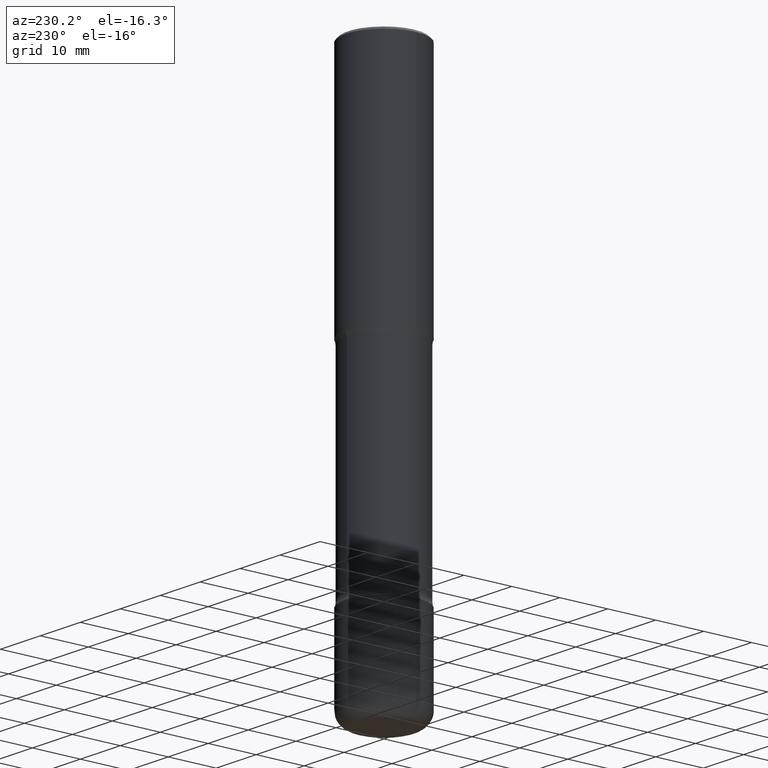
[diagram: clean part render]
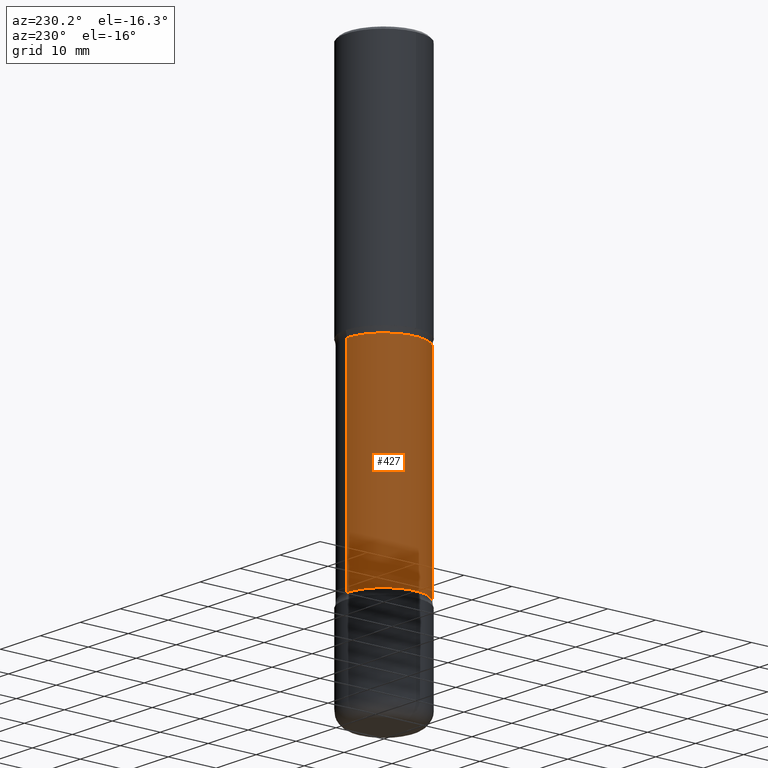
[diagram: same view with one face highlighted and labeled with its STEP entity id]
A machine part, auxiliary view. The second image highlights one B-rep face of the part: STEP entity #427.
In plain terms, the highlighted cylindrical surface (partial cylindrical patch) has radius 7.747 mm, axis along (0, -0, -1).
Its self-contained STEP definition (entity closure, byte-faithful):
#12 = DIRECTION ( 'NONE',  ( 6.982962677686266711E-15, 1.000000000000000000, -3.582751467100674095E-15 ) ) ;
#13 = VERTEX_POINT ( 'NONE', #163 ) ;
#14 = ORIENTED_EDGE ( 'NONE', *, *, #455, .T. ) ;
#41 = DIRECTION ( 'NONE',  ( 6.982962677686266711E-15, 1.000000000000000000, -3.582751467100673306E-15 ) ) ;
#43 = CARTESIAN_POINT ( 'NONE',  ( 4.820755151858623476E-29, -7.204961388123744804E-15, -2.017372256956273979 ) ) ;
#63 = VERTEX_POINT ( 'NONE', #214 ) ;
#77 = EDGE_CURVE ( 'NONE', #518, #13, #331, .T. ) ;
#127 = DIRECTION ( 'NONE',  ( 2.510864649412157600E-29, -3.397830769241806549E-15, -1.000000000000000000 ) ) ;
#133 = DIRECTION ( 'NONE',  ( 2.510864649412157880E-29, -3.397830769241806549E-15, -1.000000000000000000 ) ) ;
#141 = DIRECTION ( 'NONE',  ( 2.510864649412157600E-29, -3.397830769241806549E-15, -1.000000000000000000 ) ) ;
#142 = CIRCLE ( 'NONE', #241, 0.3049999999999999933 ) ;
#143 = EDGE_CURVE ( 'NONE', #518, #493, #142, .T. ) ;
#163 = CARTESIAN_POINT ( 'NONE',  ( -2.126582866859139470E-15, -0.3050000000000128719, -3.691327743043725906 ) ) ;
#184 = EDGE_LOOP ( 'NONE', ( #401, #398, #14, #527 ) ) ;
#193 = VECTOR ( 'NONE', #141, 39.37007874015748143 ) ;
#203 = AXIS2_PLACEMENT_3D ( 'NONE', #227, #133, #12 ) ;
#214 = CARTESIAN_POINT ( 'NONE',  ( 2.129803616694401198E-15, 0.3049999999999870592, -3.691327743043728127 ) ) ;
#227 = CARTESIAN_POINT ( 'NONE',  ( 1.112359725384078225E-28, -1.573429045124212958E-14, -4.527600000000000513 ) ) ;
#241 = AXIS2_PLACEMENT_3D ( 'NONE', #43, #380, #41 ) ;
#245 = CARTESIAN_POINT ( 'NONE',  ( 2.129803616694359388E-15, 0.3049999999999927769, -2.017372256956274867 ) ) ;
#246 = CARTESIAN_POINT ( 'NONE',  ( -2.092451889320205392E-15, -0.3050000000000157030, -4.527599999999998737 ) ) ;
#278 = VECTOR ( 'NONE', #127, 39.37007874015748143 ) ;
#331 = LINE ( 'NONE', #246, #278 ) ;
#350 = LINE ( 'NONE', #531, #193 ) ;
#367 = CARTESIAN_POINT ( 'NONE',  ( -2.126582866859183647E-15, -0.3050000000000072098, -2.017372256956272647 ) ) ;
#380 = DIRECTION ( 'NONE',  ( 2.510864649412157880E-29, -3.397830769241806549E-15, -1.000000000000000000 ) ) ;
#384 = DIRECTION ( 'NONE',  ( 2.510864649412157880E-29, -3.397830769241806549E-15, -1.000000000000000000 ) ) ;
#385 = DIRECTION ( 'NONE',  ( 6.982962677686266711E-15, 1.000000000000000000, -3.582751467100674095E-15 ) ) ;
#392 = CIRCLE ( 'NONE', #453, 0.3049999999999999378 ) ;
#397 = CARTESIAN_POINT ( 'NONE',  ( 9.023830806565153848E-29, -1.289277884509281722E-14, -3.691327743043726795 ) ) ;
#398 = ORIENTED_EDGE ( 'NONE', *, *, #143, .T. ) ;
#401 = ORIENTED_EDGE ( 'NONE', *, *, #77, .F. ) ;
#427 = ADVANCED_FACE ( 'NONE', ( #429 ), #438, .T. ) ;
#429 = FACE_OUTER_BOUND ( 'NONE', #184, .T. ) ;
#435 = EDGE_CURVE ( 'NONE', #13, #63, #392, .T. ) ;
#438 = CYLINDRICAL_SURFACE ( 'NONE', #203, 0.3049999999999999378 ) ;
#453 = AXIS2_PLACEMENT_3D ( 'NONE', #397, #384, #385 ) ;
#455 = EDGE_CURVE ( 'NONE', #493, #63, #350, .T. ) ;
#493 = VERTEX_POINT ( 'NONE', #245 ) ;
#518 = VERTEX_POINT ( 'NONE', #367 ) ;
#527 = ORIENTED_EDGE ( 'NONE', *, *, #435, .F. ) ;
#531 = CARTESIAN_POINT ( 'NONE',  ( 2.129803616694422103E-15, 0.3049999999999842282, -4.527600000000001401 ) ) ;